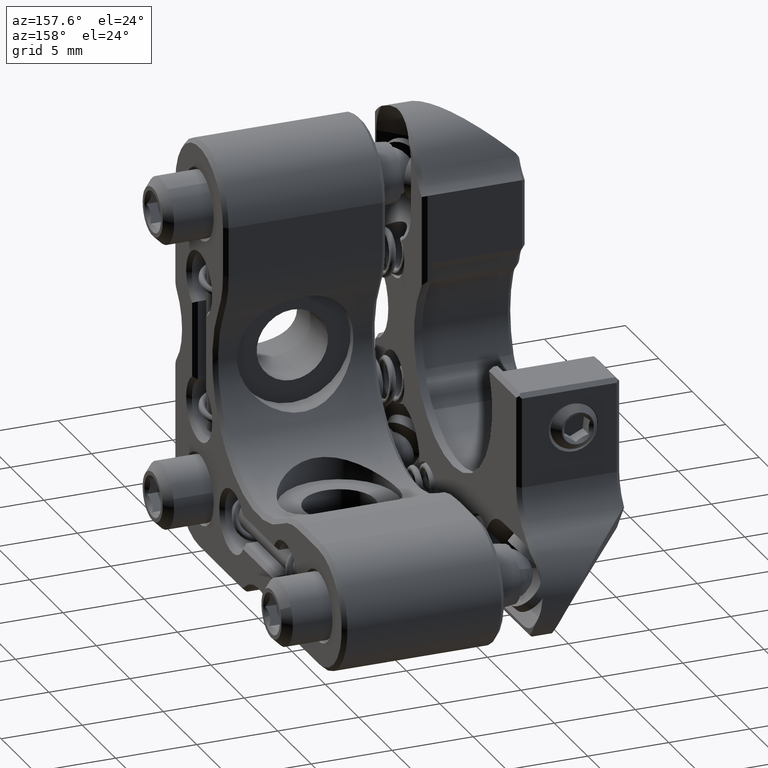
[diagram: clean part render]
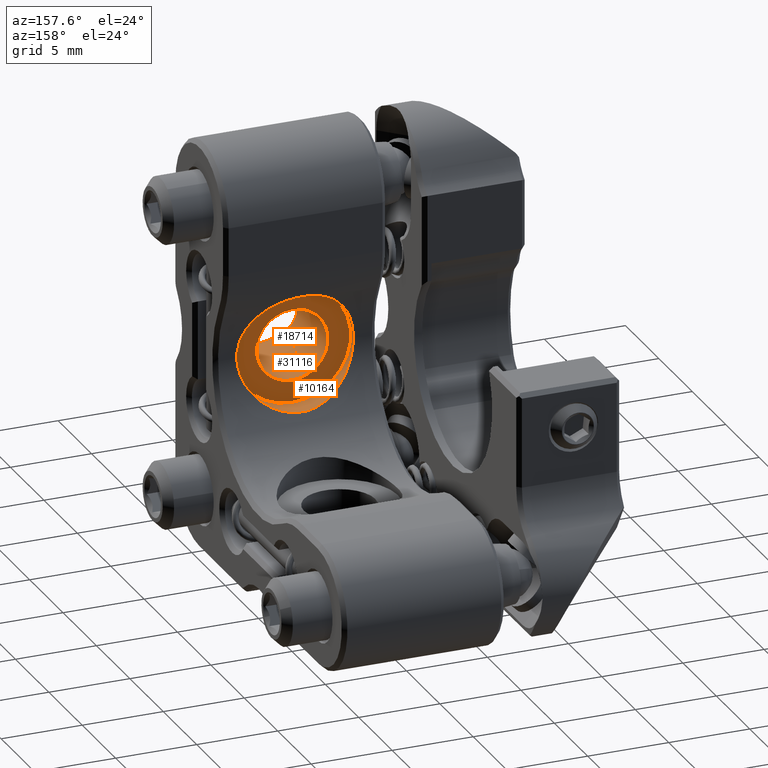
[diagram: same view with one multi-face feature highlighted, each face labeled with its STEP entity id]
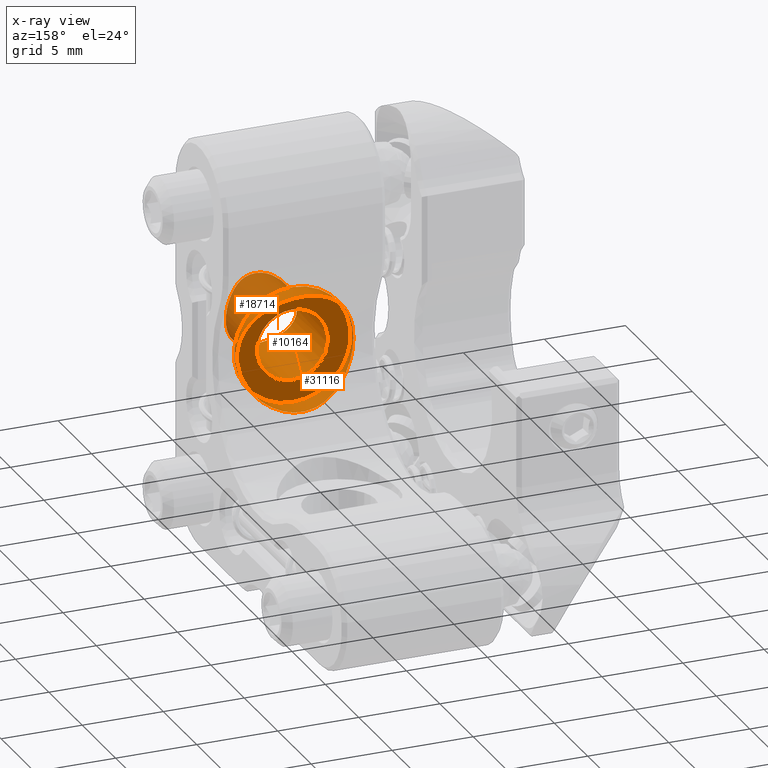
[diagram: x-ray of the same camera — body ghosted, the whole feature saturated]
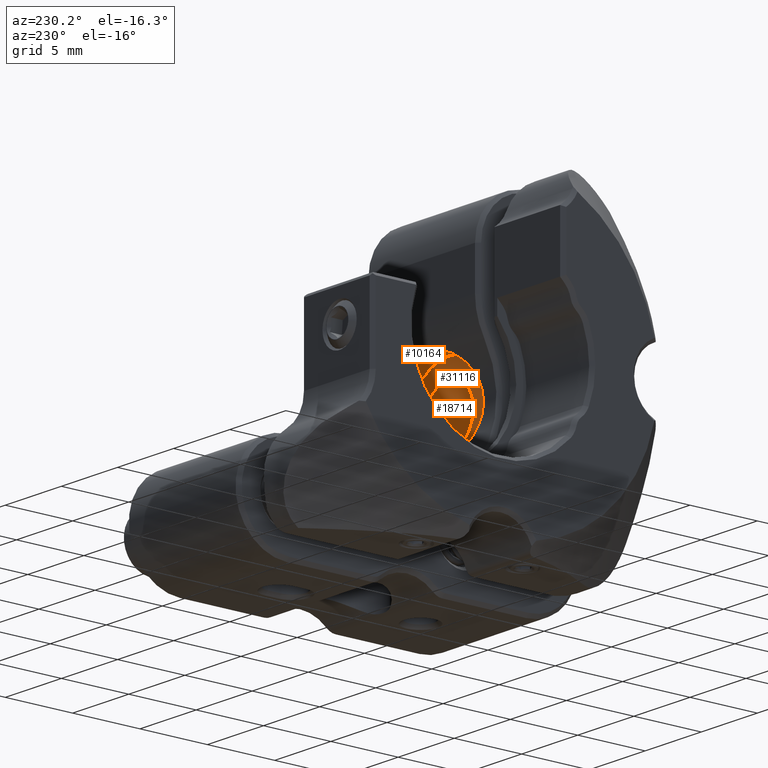
[diagram: same view with one multi-face feature highlighted, each face labeled with its STEP entity id]
A machine part, auxiliary view. The highlighted faces form ONE feature: a stepped (counterbored) hole: 2 coaxial cylindrical walls of radii 2.2 -> 3.6 mm joined by 1 annular planar shoulder face(s). The faces share edges in the B-rep.
The next image is the same camera in x-ray: the body ghosted and the whole hole feature saturated, so the bore chain is visible through the body.
A second angle (auxiliary view) of the same feature is appended — it is thin or edge-on in the first view.
Their STEP definitions:
[1] entity #10164 (Cylinder):
#707 = CARTESIAN_POINT ( 'NONE',  ( 3.598995075405910349, -6.669457615858813249, -0.2279368133229083548 ) ) ;
#1180 = CARTESIAN_POINT ( 'NONE',  ( 1.682098936019234880, -5.849100422449398096, 3.210502815560449807 ) ) ;
#1663 = CARTESIAN_POINT ( 'NONE',  ( 3.600929608451413966, -6.670501733900022323, 0.1950043554430154202 ) ) ;
#4182 = AXIS2_PLACEMENT_3D ( 'NONE', #34593, #42088, #40709 ) ;
#4574 = CARTESIAN_POINT ( 'NONE',  ( 2.880595148318685794, -6.309719007968070947, -2.168933854323909394 ) ) ;
#5046 = CARTESIAN_POINT ( 'NONE',  ( 2.999227417622090996, -6.365207588899481017, -2.001839198852378487 ) ) ;
#5289 = CARTESIAN_POINT ( 'NONE',  ( 3.299641821881809545, -6.512496146404029851, -1.454685377719002304 ) ) ;
#5763 = CARTESIAN_POINT ( 'NONE',  ( -2.503858752667845522, -6.146370323695264482, 2.594671444170378205 ) ) ;
#5999 = CARTESIAN_POINT ( 'NONE',  ( -3.440026232321127697, -6.584727448479497980, -1.081625053601917852 ) ) ;
#6239 = CARTESIAN_POINT ( 'NONE',  ( -3.498431243463553386, -6.615649985903123920, -0.8749418580757117869 ) ) ;
#7955 = CARTESIAN_POINT ( 'NONE',  ( 3.445902822936566690, -6.587808146063303560, -1.062779109570177516 ) ) ;
#8072 = CARTESIAN_POINT ( 'NONE',  ( -0.4420243683481044350, -5.640808336284757196, 3.579466101070007511 ) ) ;
#8313 = CARTESIAN_POINT ( 'NONE',  ( 0.8760056062511946129, -5.683641334226639863, 3.498651844196974281 ) ) ;
#8677 = CARTESIAN_POINT ( 'NONE',  ( 3.579222377425992807, -6.658728961809710967, -0.4411076963971986564 ) ) ;
#8911 = CARTESIAN_POINT ( 'NONE',  ( -0.4176278272620545517, -5.626795184782809933, -3.581890472062645436 ) ) ;
#9152 = CARTESIAN_POINT ( 'NONE',  ( -3.333201607127716848, -6.527420986803713632, 1.421498568680486407 ) ) ;
#9861 = CARTESIAN_POINT ( 'NONE',  ( -3.602001608509256769, -6.671080285931093812, 0.1759047866018546291 ) ) ;
#10164 = ADVANCED_FACE ( 'NONE', ( #36106, #24970 ), #10718, .F. ) ;
#10476 = CARTESIAN_POINT ( 'NONE',  ( 0.000000000000000000, -5.079999999999999183, -1.127986593019158864E-15 ) ) ;
#10718 = CYLINDRICAL_SURFACE ( 'NONE', #44209, 3.600000000000000533 ) ;
#11824 = CARTESIAN_POINT ( 'NONE',  ( 1.289541171353888016, -5.761233933161956422, 3.361113441611757846 ) ) ;
#12061 = CARTESIAN_POINT ( 'NONE',  ( 0.4397160296263544765, -5.628458805875200532, -3.579297045820344803 ) ) ;
#12534 = CARTESIAN_POINT ( 'NONE',  ( 1.444738325126532663, -5.794847398166485419, -3.303876223447648641 ) ) ;
#13007 = CARTESIAN_POINT ( 'NONE',  ( -1.289541171353878468, -5.761233933161954646, 3.361113441611761843 ) ) ;
#13481 = CARTESIAN_POINT ( 'NONE',  ( -3.584863848849040746, -6.661776010886523380, 0.3917904438247437615 ) ) ;
#15449 = CARTESIAN_POINT ( 'NONE',  ( 0.8557443330029467221, -5.676133957738346503, -3.503201273901051849 ) ) ;
#15679 = CARTESIAN_POINT ( 'NONE',  ( 2.156933656981588676, -6.013356321162400597, -2.889478491870121957 ) ) ;
#15812 = VERTEX_POINT ( 'NONE', #31677 ) ;
#16163 = CARTESIAN_POINT ( 'NONE',  ( -0.2062466073216841222, -5.614723298138883933, -3.600525335491211010 ) ) ;
#16400 = CARTESIAN_POINT ( 'NONE',  ( -1.037936955016821372, -5.706950095221433372, -3.453486399378282723 ) ) ;
#16697 = CARTESIAN_POINT ( 'NONE',  ( 1.085704604197472056, -5.715609046440620844, 3.439318372847163463 ) ) ;
#16869 = CARTESIAN_POINT ( 'NONE',  ( -3.479029930978941643, -6.605224634968987374, 1.017519044529580974 ) ) ;
#17345 = CARTESIAN_POINT ( 'NONE',  ( -3.201902579080704303, -6.463175709638183442, -1.658362884974929452 ) ) ;
#19066 = CARTESIAN_POINT ( 'NONE',  ( 3.330580660644239188, -6.526009217436021359, 1.428710181094160925 ) ) ;
#19300 = CARTESIAN_POINT ( 'NONE',  ( 2.031000025768237016, -5.964117489470841527, 3.000749812477749412 ) ) ;
#19777 = CARTESIAN_POINT ( 'NONE',  ( 2.615495237606380030, -6.193185035903422175, -2.482194016391116254 ) ) ;
#20015 = CARTESIAN_POINT ( 'NONE',  ( 0.2241953362221954515, -5.615411258351044488, -3.599452292469232706 ) ) ;
#20374 = CIRCLE ( 'NONE', #4182, 3.600000000000000533 ) ;
#20401 = VERTEX_POINT ( 'NONE', #35172 ) ;
#20482 = CARTESIAN_POINT ( 'NONE',  ( -2.194659612826309392, -6.027029974942995416, 2.860960981966312655 ) ) ;
#21578 = DIRECTION ( 'NONE',  ( -0.000000000000000000, 1.000000000000000000, 2.220446049250313081E-16 ) ) ;
#22565 = CARTESIAN_POINT ( 'NONE',  ( -0.2229319806949627836, -5.630452435326498417, 3.600003208906441543 ) ) ;
#22686 = CARTESIAN_POINT ( 'NONE',  ( 3.208640834045037860, -6.466519817418693528, -1.645402467111549694 ) ) ;
#23402 = CARTESIAN_POINT ( 'NONE',  ( 3.473303782396710560, -6.602188776893842537, 1.038645597843692814 ) ) ;
#23871 = EDGE_LOOP ( 'NONE', ( #38974 ) ) ;
#23880 = CARTESIAN_POINT ( 'NONE',  ( -3.026471455616823292, -6.378122954127268152, 1.960406414998290936 ) ) ;
#24592 = EDGE_CURVE ( 'NONE', #29771, #15812, #35196, .T. ) ;
#24755 = B_SPLINE_CURVE_WITH_KNOTS ( 'NONE', 3,
 ( #11824, #1180, #19300, #41080, #41802, #19066, #23402, #33831, #1663, #707, #8677, #38160, #7955, #5289, #22686, #5046, #4574, #19777, #30911, #15679, #34540, #34061, #12534, #45190, #15449, #12061, #20015, #16163, #8911, #30197, #16400, #44720, #26785, #26315, #41319, #46863, #27981, #31854, #31622, #17345, #46619, #5999, #6239, #32095, #35014, #9861, #13481, #16869, #9152, #23880, #35724, #38873, #5763, #20482, #35250, #46386, #28222, #13007 ),
 .UNSPECIFIED., .F., .F.,
 ( 4, 2, 2, 2, 2, 2, 2, 2, 2, 2, 2, 2, 2, 2, 2, 2, 2, 2, 2, 2, 2, 2, 2, 2, 2, 2, 2, 2, 4 ),
 ( -0.01017427484824065705, -0.008903594234275377661, -0.007632913620310098277, -0.006362233006344818025, -0.005726892699362178332, -0.005091552392379538640, -0.004456212085396898948, -0.003820871778414258388, -0.003185531471431618696, -0.002550191164448979003, -0.001914850857466340178, -0.001279510550483699619, -0.0006441702435010590588, -8.829936518420233860E-06, 0.0006265103704642185911, 0.001261850677446859151, 0.001897190984429499711, 0.002532531291412140270, 0.003167871598394779095, 0.003803211905377419655, 0.004438552212360060215, 0.005073892519342699040, 0.005709232826325334395, 0.006344573133307973220, 0.007615253747273250870, 0.008250594054255889695, 0.008885934361238525050, 0.009521274668221163875, 0.01015661497520379923 ),
 .UNSPECIFIED. ) ;
#24970 = FACE_OUTER_BOUND ( 'NONE', #23871, .T. ) ;
#25438 = DIRECTION ( 'NONE',  ( 0.000000000000000000, -2.409338161078898194E-16, 1.000000000000000000 ) ) ;
#26315 = CARTESIAN_POINT ( 'NONE',  ( -1.975228474474693297, -5.949922109042764085, -3.016759175006994198 ) ) ;
#26431 = CARTESIAN_POINT ( 'NONE',  ( -1.289541171353878468, -5.761233933161954646, 3.361113441611761843 ) ) ;
#26785 = CARTESIAN_POINT ( 'NONE',  ( -1.618525208180857433, -5.841204450010043736, -3.222225876137118750 ) ) ;
#27981 = CARTESIAN_POINT ( 'NONE',  ( -2.604509012406206470, -6.188542217661296085, -2.493699652372160180 ) ) ;
#28222 = CARTESIAN_POINT ( 'NONE',  ( -1.486061290132179469, -5.805221173934332235, 3.285715574635141856 ) ) ;
#29771 = VERTEX_POINT ( 'NONE', #44476 ) ;
#30197 = CARTESIAN_POINT ( 'NONE',  ( -0.8324309800280904614, -5.672684759961716061, -3.508762035169420201 ) ) ;
#30308 = CARTESIAN_POINT ( 'NONE',  ( 0.2230356062122501870, -5.630455725265417932, 3.599996790347845366 ) ) ;
#30911 = CARTESIAN_POINT ( 'NONE',  ( 2.468954658850602168, -6.132196062757934385, -2.627872076060763451 ) ) ;
#31622 = CARTESIAN_POINT ( 'NONE',  ( -2.992070795409341954, -6.361835251912364875, -2.012426381124174490 ) ) ;
#31677 = CARTESIAN_POINT ( 'NONE',  ( -1.289541171353878468, -5.761233933161954646, 3.361113441611761843 ) ) ;
#31854 = CARTESIAN_POINT ( 'NONE',  ( -2.870700708856220196, -6.305197074152292025, -2.181990511463919091 ) ) ;
#32095 = CARTESIAN_POINT ( 'NONE',  ( -3.576703117086199146, -6.657372511622901001, -0.4601513147659020420 ) ) ;
#33702 = CARTESIAN_POINT ( 'NONE',  ( 1.289541171353888016, -5.761233933161956422, 3.361113441611757846 ) ) ;
#33831 = CARTESIAN_POINT ( 'NONE',  ( 3.583280490465420076, -6.660918738701370856, 0.4071325181470422105 ) ) ;
#34061 = CARTESIAN_POINT ( 'NONE',  ( 1.634107770020023276, -5.845551427254523702, -3.214372696841434340 ) ) ;
#34540 = CARTESIAN_POINT ( 'NONE',  ( 1.990366503423735445, -5.954974567753317238, -3.006815794206267434 ) ) ;
#34593 = CARTESIAN_POINT ( 'NONE',  ( 0.000000000000000000, -7.079999999999999183, -1.572075802869221480E-15 ) ) ;
#35014 = CARTESIAN_POINT ( 'NONE',  ( -3.597616904322380016, -6.668713817813848976, -0.2500213818587918579 ) ) ;
#35172 = CARTESIAN_POINT ( 'NONE',  ( 0.000000000000000000, -7.080000000000000071, 3.599999999999998757 ) ) ;
#35196 = B_SPLINE_CURVE_WITH_KNOTS ( 'NONE', 3,
 ( #33702, #16697, #8313, #42815, #30308, #22565, #8072, #46450, #38039, #26431 ),
 .UNSPECIFIED., .F., .F.,
 ( 4, 2, 2, 2, 4 ),
 ( -0.001319188184262977707, -0.0006596196351350410922, -5.108600710447726290E-08, 0.0006595174631208319208, 0.001319086012248768319 ),
 .UNSPECIFIED. ) ;
#35250 = CARTESIAN_POINT ( 'NONE',  ( -2.026678037794401366, -5.967244481840181081, 2.982485767045787384 ) ) ;
#35724 = CARTESIAN_POINT ( 'NONE',  ( -2.908242696076480893, -6.322421640303654833, 2.131767720886942552 ) ) ;
#36106 = FACE_OUTER_BOUND ( 'NONE', #38614, .T. ) ;
#37930 = EDGE_CURVE ( 'NONE', #20401, #20401, #20374, .T. ) ;
#38039 = CARTESIAN_POINT ( 'NONE',  ( -1.085719081882338344, -5.715612286991329505, 3.439312818267995286 ) ) ;
#38160 = CARTESIAN_POINT ( 'NONE',  ( 3.502190104692616490, -6.617641127258513833, -0.8602751289447720939 ) ) ;
#38614 = EDGE_LOOP ( 'NONE', ( #42069, #39971 ) ) ;
#38873 = CARTESIAN_POINT ( 'NONE',  ( -2.646504484872872709, -6.206377833080256146, 2.449147444856166089 ) ) ;
#38974 = ORIENTED_EDGE ( 'NONE', *, *, #37930, .F. ) ;
#39971 = ORIENTED_EDGE ( 'NONE', *, *, #43313, .T. ) ;
#40709 = DIRECTION ( 'NONE',  ( 0.000000000000000000, -2.409338161078898194E-16, 1.000000000000000000 ) ) ;
#41080 = CARTESIAN_POINT ( 'NONE',  ( 2.655979252209755614, -6.204833769869270377, 2.464799130474355060 ) ) ;
#41319 = CARTESIAN_POINT ( 'NONE',  ( -2.145694345154467886, -6.009310279605375449, -2.897878468027504262 ) ) ;
#41802 = CARTESIAN_POINT ( 'NONE',  ( 2.915657196636493254, -6.324324917119667155, 2.152422688581716148 ) ) ;
#42069 = ORIENTED_EDGE ( 'NONE', *, *, #24592, .F. ) ;
#42088 = DIRECTION ( 'NONE',  ( -0.000000000000000000, 1.000000000000000000, 2.220446049250313081E-16 ) ) ;
#42815 = CARTESIAN_POINT ( 'NONE',  ( 0.4454932807419123009, -5.641029851618619695, 3.579034267215142506 ) ) ;
#43313 = EDGE_CURVE ( 'NONE', #29771, #15812, #24755, .T. ) ;
#44209 = AXIS2_PLACEMENT_3D ( 'NONE', #10476, #21578, #25438 ) ;
#44476 = CARTESIAN_POINT ( 'NONE',  ( 1.289541171353888016, -5.761233933161956422, 3.361113441611757846 ) ) ;
#44720 = CARTESIAN_POINT ( 'NONE',  ( -1.431482785438481953, -5.791468659309575884, -3.309794324164818669 ) ) ;
#45190 = CARTESIAN_POINT ( 'NONE',  ( 1.056440102266443803, -5.710433716419814232, -3.447724066435042367 ) ) ;
#46386 = CARTESIAN_POINT ( 'NONE',  ( -1.672337023569226755, -5.856389156944260321, 3.194672768705502097 ) ) ;
#46450 = CARTESIAN_POINT ( 'NONE',  ( -0.8726701642541234705, -5.683191274859164643, 3.499487090323886385 ) ) ;
#46619 = CARTESIAN_POINT ( 'NONE',  ( -3.291724588799680884, -6.508479535207149169, -1.472495319900344768 ) ) ;
#46863 = CARTESIAN_POINT ( 'NONE',  ( -2.459647513272282815, -6.128431422745098445, -2.636633829097012161 ) ) ;
[2] entity #18714 (Cylinder):
#573 = CARTESIAN_POINT ( 'NONE',  ( -0.9499999999999938494, -12.45000000000000284, -1.984313483298448810 ) ) ;
#1344 = CARTESIAN_POINT ( 'NONE',  ( 1.946422897353371484, -11.88085905767941952, -1.030672113495304520 ) ) ;
#1584 = CARTESIAN_POINT ( 'NONE',  ( 2.073541344047009627, -11.79154480560113250, -0.7427317818200340760 ) ) ;
#1717 = CARTESIAN_POINT ( 'NONE',  ( -0.8083857351460050911, -12.50979268960502111, 2.052112020547533167 ) ) ;
#3923 = CARTESIAN_POINT ( 'NONE',  ( -2.200407675584817202, -11.69970103815642481, -0.2119113632140064984 ) ) ;
#4494 = CARTESIAN_POINT ( 'NONE',  ( 1.134476783253943744, -12.37210980262611137, 1.895994301089421796 ) ) ;
#4724 = CARTESIAN_POINT ( 'NONE',  ( 1.301331790234540708, -12.28366410482716020, 1.784914775244936358 ) ) ;
#5028 = B_SPLINE_CURVE_WITH_KNOTS ( 'NONE', 3,
 ( #24399, #31669, #31189, #16914, #34825, #46666, #46430, #20532, #24637, #12814 ),
 .UNSPECIFIED., .F., .F.,
 ( 4, 2, 2, 2, 4 ),
 ( -0.0009901643228650250546, -0.0004948839116037908248, 3.964996574434050819E-07, 0.0004956769109186777433, 0.0009909573221799118647 ),
 .UNSPECIFIED. ) ;
#5450 = CARTESIAN_POINT ( 'NONE',  ( 2.191473783997461844, -11.70626742845466062, -0.2217532626269522467 ) ) ;
#5549 = CARTESIAN_POINT ( 'NONE',  ( 0.9499999999999966249, -12.45000000000000284, 1.984313483298440817 ) ) ;
#7480 = ORIENTED_EDGE ( 'NONE', *, *, #20174, .F. ) ;
#7545 = CARTESIAN_POINT ( 'NONE',  ( -2.199790174550405375, -11.70015387186854561, 0.1122420558856884465 ) ) ;
#8047 = B_SPLINE_CURVE_WITH_KNOTS ( 'NONE', 3,
 ( #12451, #16081, #26471, #34460, #38564, #41474, #1344, #8117, #1584, #16322, #37842, #5450, #45828, #33978, #44878, #22843, #38322, #12220, #37607, #4724, #4494, #15601 ),
 .UNSPECIFIED., .F., .F.,
 ( 4, 2, 2, 2, 2, 2, 2, 2, 2, 2, 4 ),
 ( 5.421010862427522170E-19, 0.0006465942723281037623, 0.001293188544656207091, 0.001616485680820257780, 0.001939782816984308034, 0.002263079953148358289, 0.002586377089312408544, 0.003232971361640509488, 0.003879565633968610431, 0.004526159906296712242, 0.005172754178624812751 ),
 .UNSPECIFIED. ) ;
#8117 = CARTESIAN_POINT ( 'NONE',  ( 2.035085156724016464, -11.81892985985327549, -0.8421849593527289679 ) ) ;
#8236 = B_SPLINE_CURVE_WITH_KNOTS ( 'NONE', 3,
 ( #12112, #1717, #37980, #42332, #9206, #19594, #20303, #45731, #35070, #12590 ),
 .UNSPECIFIED., .F., .F.,
 ( 4, 2, 2, 2, 4 ),
 ( 1.084202172485504434E-19, 0.0004967002808639017818, 0.0009934005617278033468, 0.001490100842591704586, 0.001986801123455606260 ),
 .UNSPECIFIED. ) ;
#9206 = CARTESIAN_POINT ( 'NONE',  ( -0.1670360228932891711, -12.59517206250305321, 2.200030569250795320 ) ) ;
#9624 = DIRECTION ( 'NONE',  ( 0.000000000000000000, -1.000000000000000000, -2.220446049250313081E-16 ) ) ;
#10698 = CARTESIAN_POINT ( 'NONE',  ( -1.134476783253942855, -12.37210980262611493, -1.895994301089430012 ) ) ;
#10934 = CARTESIAN_POINT ( 'NONE',  ( -1.896426324415193987, -11.91526461069871168, 1.119711592192195404 ) ) ;
#11175 = CARTESIAN_POINT ( 'NONE',  ( -2.035085156724008026, -11.81892985985327904, 0.8421849593527450661 ) ) ;
#12112 = CARTESIAN_POINT ( 'NONE',  ( -0.9499999999999615419, -12.45000000000001705, 1.984313483298458358 ) ) ;
#12220 = CARTESIAN_POINT ( 'NONE',  ( 1.733415266504061192, -12.02456502031357388, 1.369935519589084327 ) ) ;
#12262 = VERTEX_POINT ( 'NONE', #5549 ) ;
#12428 = ORIENTED_EDGE ( 'NONE', *, *, #38749, .F. ) ;
#12451 = CARTESIAN_POINT ( 'NONE',  ( 0.9499999999999929612, -12.45000000000000284, -1.984313483298448810 ) ) ;
#12590 = CARTESIAN_POINT ( 'NONE',  ( 0.9499999999999966249, -12.45000000000000284, 1.984313483298440817 ) ) ;
#12628 = ORIENTED_EDGE ( 'NONE', *, *, #26934, .T. ) ;
#12814 = CARTESIAN_POINT ( 'NONE',  ( -0.9499999999999938494, -12.45000000000000284, -1.984313483298448810 ) ) ;
#14280 = CIRCLE ( 'NONE', #38210, 2.199999999999999734 ) ;
#14314 = CARTESIAN_POINT ( 'NONE',  ( -2.167905679897569993, -11.72375924154688853, -0.4303491473036252235 ) ) ;
#14478 = CARTESIAN_POINT ( 'NONE',  ( -0.9499999999999615419, -12.45000000000001705, 1.984313483298458358 ) ) ;
#14550 = CARTESIAN_POINT ( 'NONE',  ( -1.301331790234541153, -12.28366410482715843, -1.784914775244940577 ) ) ;
#15030 = CARTESIAN_POINT ( 'NONE',  ( -1.955381947391221065, -11.87568726863261936, -1.028558823693466184 ) ) ;
#15601 = CARTESIAN_POINT ( 'NONE',  ( 0.9499999999999966249, -12.45000000000000284, 1.984313483298440817 ) ) ;
#16081 = CARTESIAN_POINT ( 'NONE',  ( 1.134370861482776327, -12.37215452515171776, -1.896045011666892988 ) ) ;
#16322 = CARTESIAN_POINT ( 'NONE',  ( 2.135315551229706621, -11.74718601742729085, -0.5400478699841461117 ) ) ;
#16870 = DIRECTION ( 'NONE',  ( 0.000000000000000000, -3.942553354492744024E-16, 1.000000000000000000 ) ) ;
#16914 = CARTESIAN_POINT ( 'NONE',  ( 0.3321417607613041389, -12.58654429107475181, -2.181106616518365016 ) ) ;
#17459 = CARTESIAN_POINT ( 'NONE',  ( 0.000000000000000000, -5.079999999999999183, -1.127986593019158864E-15 ) ) ;
#17881 = VERTEX_POINT ( 'NONE', #573 ) ;
#17942 = CARTESIAN_POINT ( 'NONE',  ( -0.9499999999999615419, -12.45000000000001705, 1.984313483298458358 ) ) ;
#18415 = CARTESIAN_POINT ( 'NONE',  ( -2.159092907616757540, -11.72988896710841722, 0.4359468679929560109 ) ) ;
#18714 = ADVANCED_FACE ( 'NONE', ( #43815, #36075 ), #46735, .F. ) ;
#19594 = CARTESIAN_POINT ( 'NONE',  ( 0.1678402984271405163, -12.59514158143588602, 2.199969357242475887 ) ) ;
#19729 = AXIS2_PLACEMENT_3D ( 'NONE', #17459, #43581, #20840 ) ;
#20174 = EDGE_CURVE ( 'NONE', #41011, #12262, #8236, .T. ) ;
#20303 = CARTESIAN_POINT ( 'NONE',  ( 0.3317733604245465262, -12.58648428033380462, 2.181045074197230260 ) ) ;
#20532 = CARTESIAN_POINT ( 'NONE',  ( -0.6522676617099335550, -12.54385861745076092, -2.107505178132399681 ) ) ;
#20840 = DIRECTION ( 'NONE',  ( 0.000000000000000000, -3.942553354492744024E-16, 1.000000000000000000 ) ) ;
#21194 = CARTESIAN_POINT ( 'NONE',  ( 0.000000000000000000, -7.079999999999999183, -1.572075802869221480E-15 ) ) ;
#22037 = CARTESIAN_POINT ( 'NONE',  ( -1.599750641814718266, -12.11071113121531084, -1.523214714732013197 ) ) ;
#22258 = EDGE_CURVE ( 'NONE', #37605, #37605, #14280, .T. ) ;
#22843 = CARTESIAN_POINT ( 'NONE',  ( 2.045710174332797671, -11.81155333566393928, 0.8367110063506824069 ) ) ;
#24399 = CARTESIAN_POINT ( 'NONE',  ( 0.9499999999999929612, -12.45000000000000284, -1.984313483298448810 ) ) ;
#24637 = CARTESIAN_POINT ( 'NONE',  ( -0.8084856936891455792, -12.50975048488681196, -2.052064164895306853 ) ) ;
#24950 = CARTESIAN_POINT ( 'NONE',  ( -1.946422897353359938, -11.88085905767942663, 1.030672113495320952 ) ) ;
#25419 = CARTESIAN_POINT ( 'NONE',  ( -0.9499999999999938494, -12.45000000000000284, -1.984313483298448810 ) ) ;
#26471 = CARTESIAN_POINT ( 'NONE',  ( 1.298713948036560373, -12.28507978178110882, -1.786802445404606532 ) ) ;
#26934 = EDGE_CURVE ( 'NONE', #47148, #12262, #8047, .T. ) ;
#29059 = CARTESIAN_POINT ( 'NONE',  ( -2.045710174332800335, -11.81155333566393395, -0.8367110063506784101 ) ) ;
#29922 = ORIENTED_EDGE ( 'NONE', *, *, #22258, .F. ) ;
#31189 = CARTESIAN_POINT ( 'NONE',  ( 0.6555990382419447648, -12.54330528396462618, -2.106593013118112534 ) ) ;
#31669 = CARTESIAN_POINT ( 'NONE',  ( 0.8083857351460363994, -12.50979268960500868, -2.052112020547527393 ) ) ;
#31896 = EDGE_LOOP ( 'NONE', ( #12428, #12628, #7480, #45327 ) ) ;
#32198 = CARTESIAN_POINT ( 'NONE',  ( 0.9499999999999929612, -12.45000000000000284, -1.984313483298448810 ) ) ;
#32689 = CARTESIAN_POINT ( 'NONE',  ( -2.135315551229701736, -11.74718601742729440, 0.5400478699841610997 ) ) ;
#32933 = CARTESIAN_POINT ( 'NONE',  ( -1.730692940487388531, -12.02631871902779714, 1.373116659372084492 ) ) ;
#33410 = CARTESIAN_POINT ( 'NONE',  ( -2.191473783997460512, -11.70626742845466595, 0.2217532626269655138 ) ) ;
#33978 = CARTESIAN_POINT ( 'NONE',  ( 2.200407675584816758, -11.69970103815643014, 0.2119113632140166015 ) ) ;
#34278 = EDGE_CURVE ( 'NONE', #41011, #17881, #43688, .T. ) ;
#34460 = CARTESIAN_POINT ( 'NONE',  ( 1.597289960886920213, -12.11223707409511796, -1.525773796661370474 ) ) ;
#34825 = CARTESIAN_POINT ( 'NONE',  ( 0.1670360228933097102, -12.59517206250305321, -2.200030569250801094 ) ) ;
#35070 = CARTESIAN_POINT ( 'NONE',  ( 0.8084856936891507972, -12.50975048488681018, 2.052064164895298415 ) ) ;
#36075 = FACE_OUTER_BOUND ( 'NONE', #31896, .T. ) ;
#36558 = CARTESIAN_POINT ( 'NONE',  ( -2.073541344047000745, -11.79154480560113605, 0.7427317818200498412 ) ) ;
#37368 = CARTESIAN_POINT ( 'NONE',  ( 0.000000000000000000, -7.080000000000000071, 2.199999999999997957 ) ) ;
#37605 = VERTEX_POINT ( 'NONE', #37368 ) ;
#37607 = CARTESIAN_POINT ( 'NONE',  ( 1.599750641814716490, -12.11071113121531440, 1.523214714732010089 ) ) ;
#37842 = CARTESIAN_POINT ( 'NONE',  ( 2.159092907616761092, -11.72988896710841722, -0.4359468679929413004 ) ) ;
#37980 = CARTESIAN_POINT ( 'NONE',  ( -0.6555990382419140117, -12.54330528396463329, 2.106593013118115643 ) ) ;
#38210 = AXIS2_PLACEMENT_3D ( 'NONE', #21194, #9624, #16870 ) ;
#38322 = CARTESIAN_POINT ( 'NONE',  ( 1.955381947391216624, -11.87568726863262292, 1.028558823693468849 ) ) ;
#38564 = CARTESIAN_POINT ( 'NONE',  ( 1.730692940487405407, -12.02631871902778471, -1.373116659372068726 ) ) ;
#38749 = EDGE_CURVE ( 'NONE', #47148, #17881, #5028, .T. ) ;
#38846 = EDGE_LOOP ( 'NONE', ( #29922 ) ) ;
#39947 = CARTESIAN_POINT ( 'NONE',  ( -1.597289960886900451, -12.11223707409513217, 1.525773796661385795 ) ) ;
#41011 = VERTEX_POINT ( 'NONE', #14478 ) ;
#41474 = CARTESIAN_POINT ( 'NONE',  ( 1.896426324415207532, -11.91526461069870635, -1.119711592192179195 ) ) ;
#42332 = CARTESIAN_POINT ( 'NONE',  ( -0.3321417607612778267, -12.58654429107476247, 2.181106616518362795 ) ) ;
#43581 = DIRECTION ( 'NONE',  ( -0.000000000000000000, 1.000000000000000000, 2.220446049250313081E-16 ) ) ;
#43688 = B_SPLINE_CURVE_WITH_KNOTS ( 'NONE', 3,
 ( #17942, #44541, #44069, #39947, #32933, #10934, #24950, #11175, #36558, #32689, #18415, #33410, #7545, #3923, #14314, #29059, #15030, #47697, #22037, #14550, #10698, #25419 ),
 .UNSPECIFIED., .F., .F.,
 ( 4, 2, 2, 2, 2, 2, 2, 2, 2, 2, 4 ),
 ( 2.168404344971008868E-19, 0.0006465942723281073402, 0.001293188544656214464, 0.001616485680820267754, 0.001939782816984320828, 0.002263079953148373902, 0.002586377089312426325, 0.003232971361640532906, 0.003879565633968639488, 0.004526159906296746069, 0.005172754178624852650 ),
 .UNSPECIFIED. ) ;
#43815 = FACE_OUTER_BOUND ( 'NONE', #38846, .T. ) ;
#44069 = CARTESIAN_POINT ( 'NONE',  ( -1.298713948036535948, -12.28507978178112481, 1.786802445404620077 ) ) ;
#44541 = CARTESIAN_POINT ( 'NONE',  ( -1.134370861482748349, -12.37215452515173197, 1.896045011666904534 ) ) ;
#44878 = CARTESIAN_POINT ( 'NONE',  ( 2.167905679897567328, -11.72375924154689386, 0.4303491473036335502 ) ) ;
#45327 = ORIENTED_EDGE ( 'NONE', *, *, #34278, .T. ) ;
#45731 = CARTESIAN_POINT ( 'NONE',  ( 0.6522676617099425478, -12.54385861745076269, 2.107505178132391688 ) ) ;
#45828 = CARTESIAN_POINT ( 'NONE',  ( 2.199790174550406263, -11.70015387186854561, -0.1122420558856758177 ) ) ;
#46430 = CARTESIAN_POINT ( 'NONE',  ( -0.3317733604245323153, -12.58648428033380817, -2.181045074197238698 ) ) ;
#46666 = CARTESIAN_POINT ( 'NONE',  ( -0.1678402984271237519, -12.59514158143589491, -2.199969357242484769 ) ) ;
#46735 = CYLINDRICAL_SURFACE ( 'NONE', #19729, 2.199999999999999734 ) ;
#47148 = VERTEX_POINT ( 'NONE', #32198 ) ;
#47697 = CARTESIAN_POINT ( 'NONE',  ( -1.733415266504064522, -12.02456502031357033, -1.369935519589084993 ) ) ;
[3] entity #31116 (Plane):
#1051 = FACE_OUTER_BOUND ( 'NONE', #46190, .T. ) ;
#4182 = AXIS2_PLACEMENT_3D ( 'NONE', #34593, #42088, #40709 ) ;
#8551 = CARTESIAN_POINT ( 'NONE',  ( 2.200000000000001066, -7.079999999999999183, -1.572075802869221480E-15 ) ) ;
#9624 = DIRECTION ( 'NONE',  ( 0.000000000000000000, -1.000000000000000000, -2.220446049250313081E-16 ) ) ;
#12405 = DIRECTION ( 'NONE',  ( 0.000000000000000000, 2.220446049250313081E-16, -1.000000000000000000 ) ) ;
#14280 = CIRCLE ( 'NONE', #38210, 2.199999999999999734 ) ;
#16455 = EDGE_LOOP ( 'NONE', ( #31073 ) ) ;
#16870 = DIRECTION ( 'NONE',  ( 0.000000000000000000, -3.942553354492744024E-16, 1.000000000000000000 ) ) ;
#20374 = CIRCLE ( 'NONE', #4182, 3.600000000000000533 ) ;
#20401 = VERTEX_POINT ( 'NONE', #35172 ) ;
#21194 = CARTESIAN_POINT ( 'NONE',  ( 0.000000000000000000, -7.079999999999999183, -1.572075802869221480E-15 ) ) ;
#22258 = EDGE_CURVE ( 'NONE', #37605, #37605, #14280, .T. ) ;
#26897 = FACE_BOUND ( 'NONE', #16455, .T. ) ;
#30067 = ORIENTED_EDGE ( 'NONE', *, *, #37930, .T. ) ;
#30779 = DIRECTION ( 'NONE',  ( 0.000000000000000000, -1.000000000000000000, -2.220446049250313081E-16 ) ) ;
#31073 = ORIENTED_EDGE ( 'NONE', *, *, #22258, .T. ) ;
#31116 = ADVANCED_FACE ( 'NONE', ( #1051, #26897 ), #41668, .F. ) ;
#34593 = CARTESIAN_POINT ( 'NONE',  ( 0.000000000000000000, -7.079999999999999183, -1.572075802869221480E-15 ) ) ;
#35172 = CARTESIAN_POINT ( 'NONE',  ( 0.000000000000000000, -7.080000000000000071, 3.599999999999998757 ) ) ;
#37368 = CARTESIAN_POINT ( 'NONE',  ( 0.000000000000000000, -7.080000000000000071, 2.199999999999997957 ) ) ;
#37605 = VERTEX_POINT ( 'NONE', #37368 ) ;
#37930 = EDGE_CURVE ( 'NONE', #20401, #20401, #20374, .T. ) ;
#38210 = AXIS2_PLACEMENT_3D ( 'NONE', #21194, #9624, #16870 ) ;
#40709 = DIRECTION ( 'NONE',  ( 0.000000000000000000, -2.409338161078898194E-16, 1.000000000000000000 ) ) ;
#41668 = PLANE ( 'NONE',  #46367 ) ;
#42088 = DIRECTION ( 'NONE',  ( -0.000000000000000000, 1.000000000000000000, 2.220446049250313081E-16 ) ) ;
#46190 = EDGE_LOOP ( 'NONE', ( #30067 ) ) ;
#46367 = AXIS2_PLACEMENT_3D ( 'NONE', #8551, #30779, #12405 ) ;